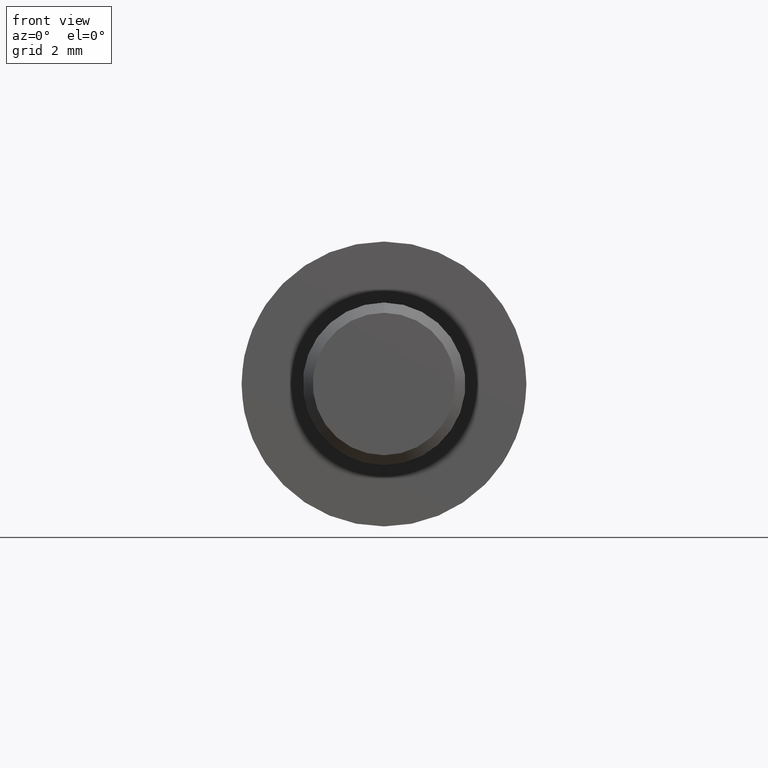
[diagram: clean part render]
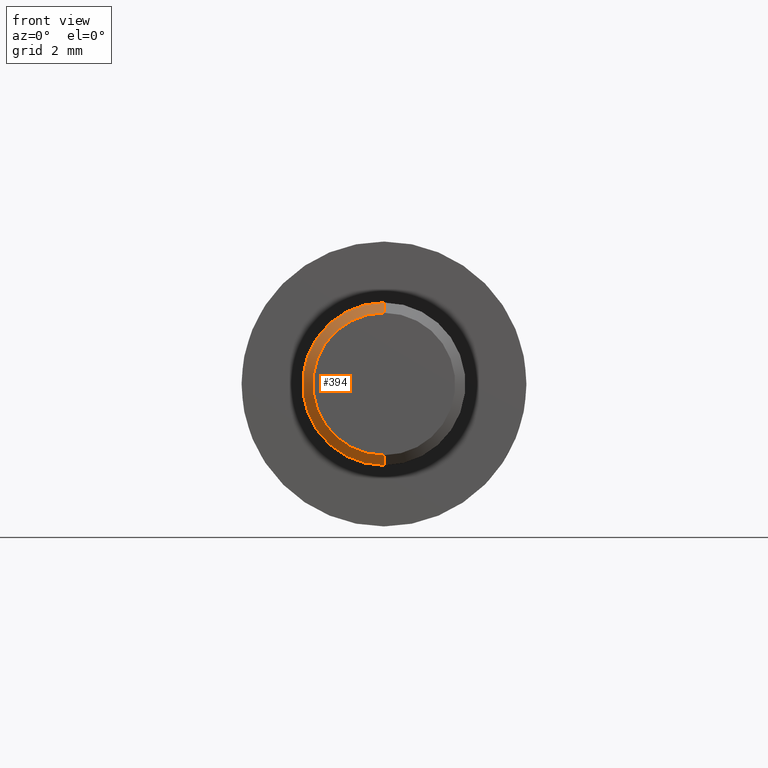
[diagram: same view with one face highlighted and labeled with its STEP entity id]
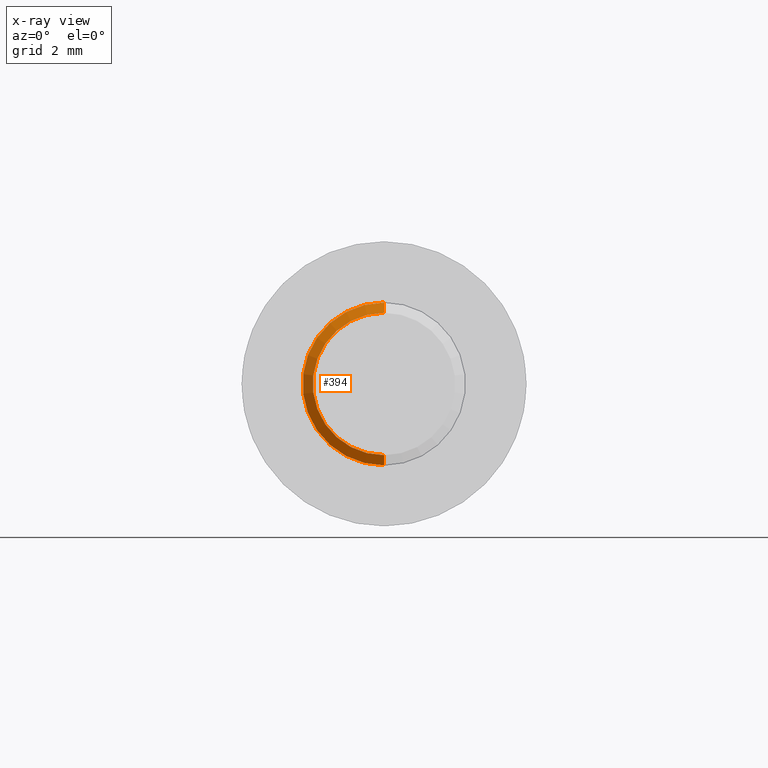
[diagram: x-ray of the same camera — body ghosted, the highlighted face saturated]
A machine part, front view. The second image highlights one B-rep face of the part: STEP entity #394.
The next image is the same camera in x-ray: the body ghosted, the highlighted face saturated — about 0% of this face is hidden behind the body in this view.
In plain terms, the highlighted conical surface has half-angle 45 deg.
Its self-contained STEP definition (entity closure, byte-faithful):
#26 = CARTESIAN_POINT ( 'NONE',  ( 2.143131898507872000E-016, -12.00000000000000000, -1.750000000000003300 ) ) ;
#40 = CARTESIAN_POINT ( 'NONE',  ( 0.0000000000000000000, -11.75000000000000200, 2.000000000000000000 ) ) ;
#61 = DIRECTION ( 'NONE',  ( 0.0000000000000000000, 0.0000000000000000000, -1.000000000000000000 ) ) ;
#64 = CARTESIAN_POINT ( 'NONE',  ( 0.0000000000000000000, -12.00000000000000000, 0.0000000000000000000 ) ) ;
#66 = DIRECTION ( 'NONE',  ( 0.0000000000000000000, -1.000000000000000000, 0.0000000000000000000 ) ) ;
#71 = CARTESIAN_POINT ( 'NONE',  ( 0.0000000000000000000, -12.00000000000000000, 0.0000000000000000000 ) ) ;
#76 = DIRECTION ( 'NONE',  ( 0.0000000000000000000, 0.0000000000000000000, 1.000000000000000000 ) ) ;
#78 = DIRECTION ( 'NONE',  ( 8.659560562354904500E-017, 0.7071067811865500200, -0.7071067811865451300 ) ) ;
#86 = DIRECTION ( 'NONE',  ( 0.0000000000000000000, 0.0000000000000000000, -1.000000000000000000 ) ) ;
#90 = DIRECTION ( 'NONE',  ( 0.0000000000000000000, 1.000000000000000000, 0.0000000000000000000 ) ) ;
#91 = CARTESIAN_POINT ( 'NONE',  ( 0.0000000000000000000, -11.75000000000000200, 0.0000000000000000000 ) ) ;
#97 = CARTESIAN_POINT ( 'NONE',  ( 2.449293598294706400E-016, -11.75000000000000200, -2.000000000000000000 ) ) ;
#105 = DIRECTION ( 'NONE',  ( 0.0000000000000000000, 1.000000000000000000, 0.0000000000000000000 ) ) ;
#106 = CARTESIAN_POINT ( 'NONE',  ( 2.296212748401289000E-016, -12.00000000000000000, -1.750000000000003300 ) ) ;
#108 = CARTESIAN_POINT ( 'NONE',  ( 0.0000000000000000000, -12.00000000000000000, 1.750000000000003300 ) ) ;
#124 = DIRECTION ( 'NONE',  ( 0.0000000000000000000, 0.7071067811865500200, 0.7071067811865451300 ) ) ;
#179 = CARTESIAN_POINT ( 'NONE',  ( 0.0000000000000000000, -12.00000000000000000, 1.750000000000003300 ) ) ;
#216 = CONICAL_SURFACE ( 'NONE', #449, 1.750000000000003300, 0.7853981633974447300 ) ;
#233 = FACE_OUTER_BOUND ( 'NONE', #544, .T. ) ;
#289 = VECTOR ( 'NONE', #124, 1000.000000000000100 ) ;
#291 = LINE ( 'NONE', #108, #289 ) ;
#297 = VECTOR ( 'NONE', #78, 1000.000000000000100 ) ;
#304 = LINE ( 'NONE', #26, #297 ) ;
#334 = VERTEX_POINT ( 'NONE', #97 ) ;
#335 = VERTEX_POINT ( 'NONE', #40 ) ;
#338 = ORIENTED_EDGE ( 'NONE', *, *, #447, .F. ) ;
#344 = ORIENTED_EDGE ( 'NONE', *, *, #427, .F. ) ;
#354 = VERTEX_POINT ( 'NONE', #106 ) ;
#355 = VERTEX_POINT ( 'NONE', #179 ) ;
#358 = ORIENTED_EDGE ( 'NONE', *, *, #423, .T. ) ;
#379 = ORIENTED_EDGE ( 'NONE', *, *, #448, .F. ) ;
#394 = ADVANCED_FACE ( 'NONE', ( #233 ), #216, .T. ) ;
#423 = EDGE_CURVE ( 'NONE', #355, #335, #291, .T. ) ;
#427 = EDGE_CURVE ( 'NONE', #354, #334, #304, .T. ) ;
#447 = EDGE_CURVE ( 'NONE', #334, #335, #518, .T. ) ;
#448 = EDGE_CURVE ( 'NONE', #355, #354, #517, .T. ) ;
#449 = AXIS2_PLACEMENT_3D ( 'NONE', #64, #105, #76 ) ;
#479 = AXIS2_PLACEMENT_3D ( 'NONE', #91, #90, #86 ) ;
#480 = AXIS2_PLACEMENT_3D ( 'NONE', #71, #66, #61 ) ;
#517 = CIRCLE ( 'NONE', #480, 1.750000000000003300 ) ;
#518 = CIRCLE ( 'NONE', #479, 2.000000000000000000 ) ;
#544 = EDGE_LOOP ( 'NONE', ( #344, #379, #358, #338 ) ) ;